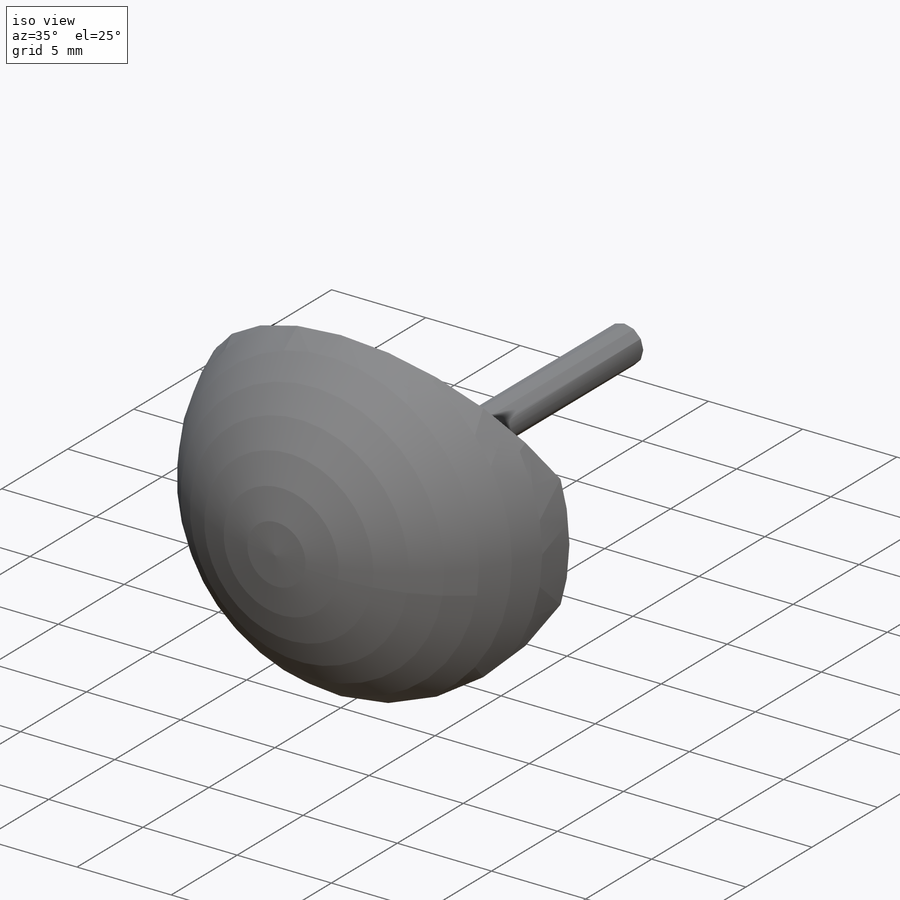
[diagram: iso view]
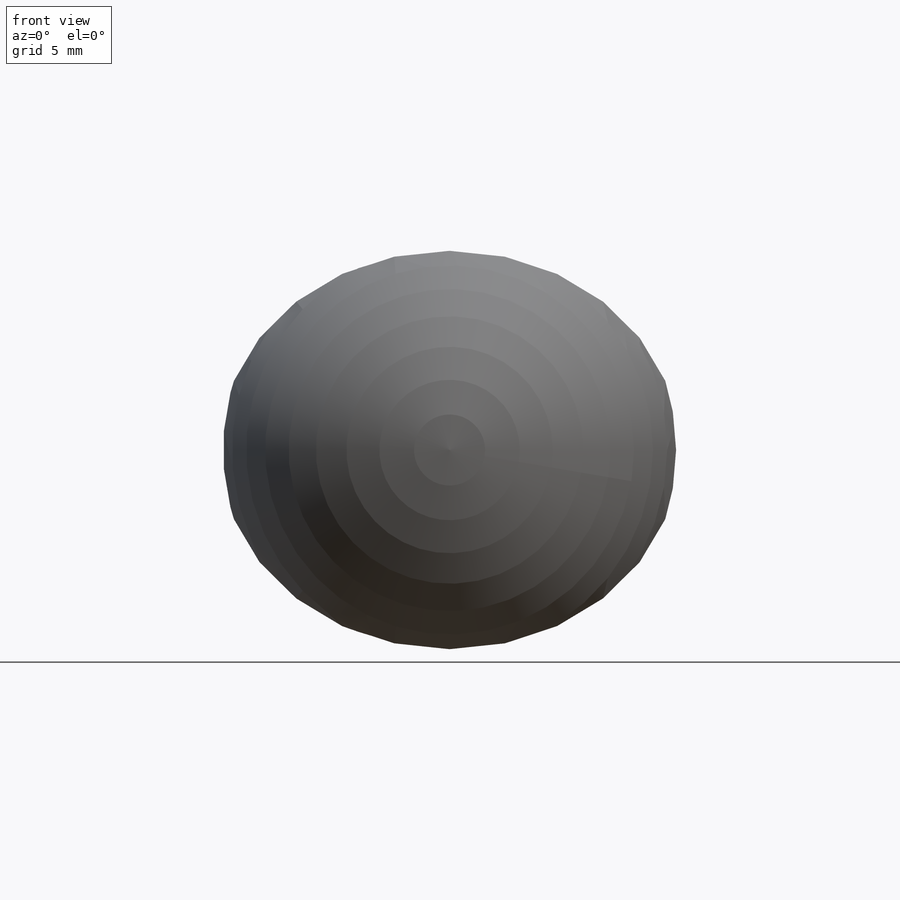
[diagram: front view]
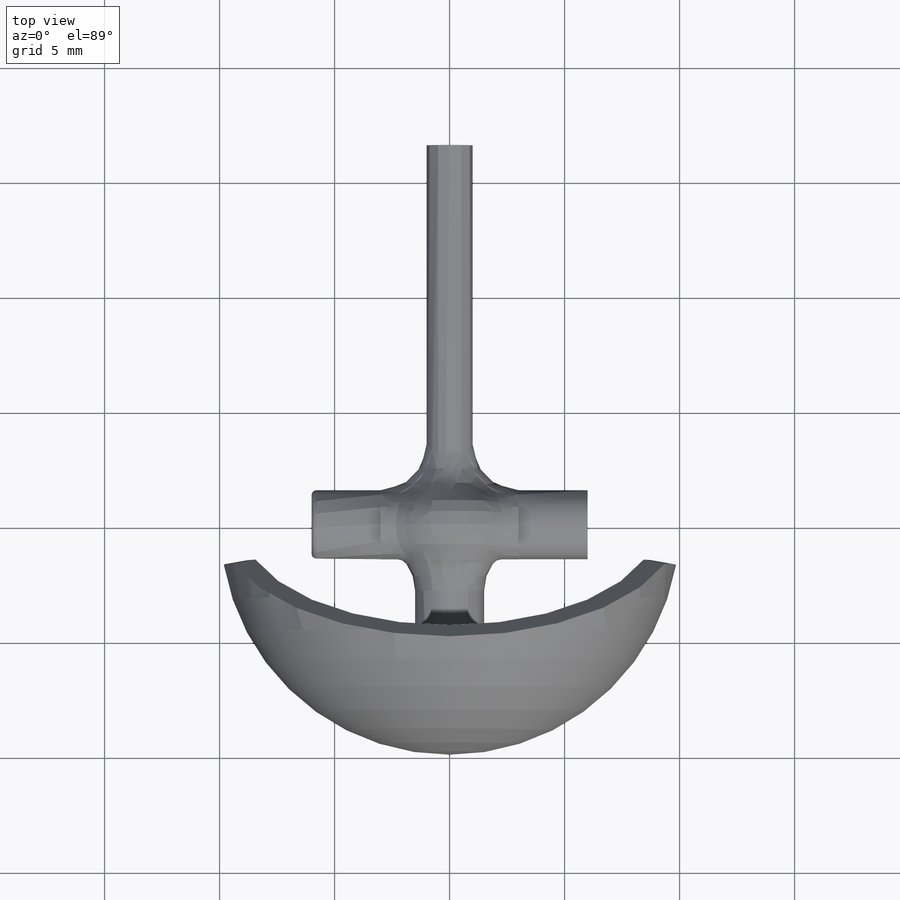
[diagram: top view]
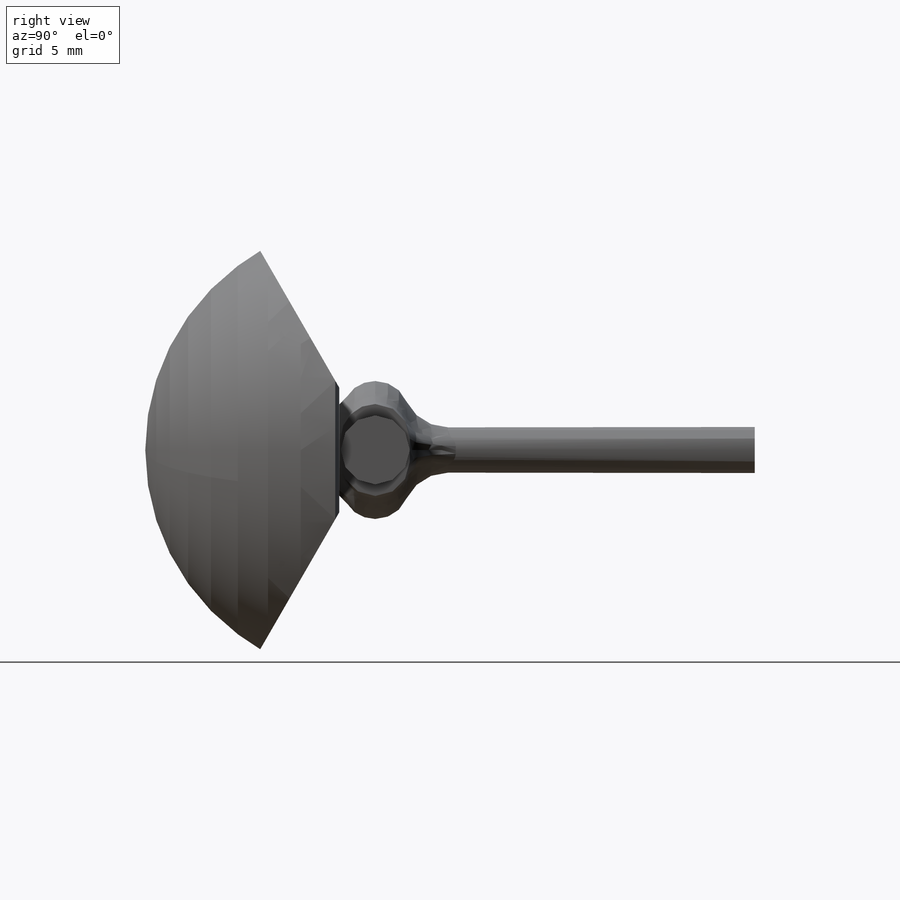
[diagram: right view]
SOLIDWORKS PART (.sldprt)
format: sldprt  version: not decoded by parser v0  size: 429,568 bytes
history: native  units: mm
features: fillet x8, sketch x7, extrude x5, material x1, revolve x1, cut_extrude x1, boolean_combine x1 (+12 scaffold rows collapsed)
feature tree (36):
  scaffold x12  (default folders/planes/origin — collapsed)
  material  "Material <not specified>"
  sketch  "Sketch1"  dims[D1=6.0mm]
  extrude  "Boss-Extrude1"  Depth=3mm
  sketch  "Sketch2"  dims[D1=0.5mm]
  extrude  "Boss-Extrude2"  Depth=6mm
  extrude  "Boss-Extrude4"  [1 undecoded]
  sketch  "Sketch2<6>"  dims[D1=3.0mm D2=3.0mm]
  fillet  "Fillet2"  Radius=0.5mm
  fillet  "Fillet4"  Radius=1.5mm
  fillet  "Fillet5"  Radius=1.5mm
  fillet  "Fillet7"  Radius=1.5mm
  fillet  "Fillet8"  Radius=0.2mm
  sketch  "Sketch3"
  extrude  "Boss-Extrude5"  Depth=8mm
  fillet  "Fillet9"  Radius=2mm
  fillet  "Fillet10"  Radius=0.5mm
  sketch  "Sketch4"  dims[c1.D1=20.0mm c1.D2=18.0mm c1.D3=9.0mm c2.D3=80.0deg]
  revolve  "Revolve1"  Angle=360deg
  sketch  "Sketch5"  dims[c1.D1=~14.95686mm c2.D1=60.0deg]
  cut_extrude  "Cut-Extrude2"  [1 undecoded]
  boolean_combine  "Combine1"
  fillet  "Fillet11"  Radius=3mm
  sketch  "Sketch6"  dims[D1=2.0mm]
  extrude  "Boss-Extrude6"  Depth=15mm
decode coverage: 19 of 23 modeling features carry decoded parameters
note: ~ marks probable driven/reference dimensions
note: 2 parameter values undecoded
note: suppression state not decoded; provenance and decode notes live in map.json
